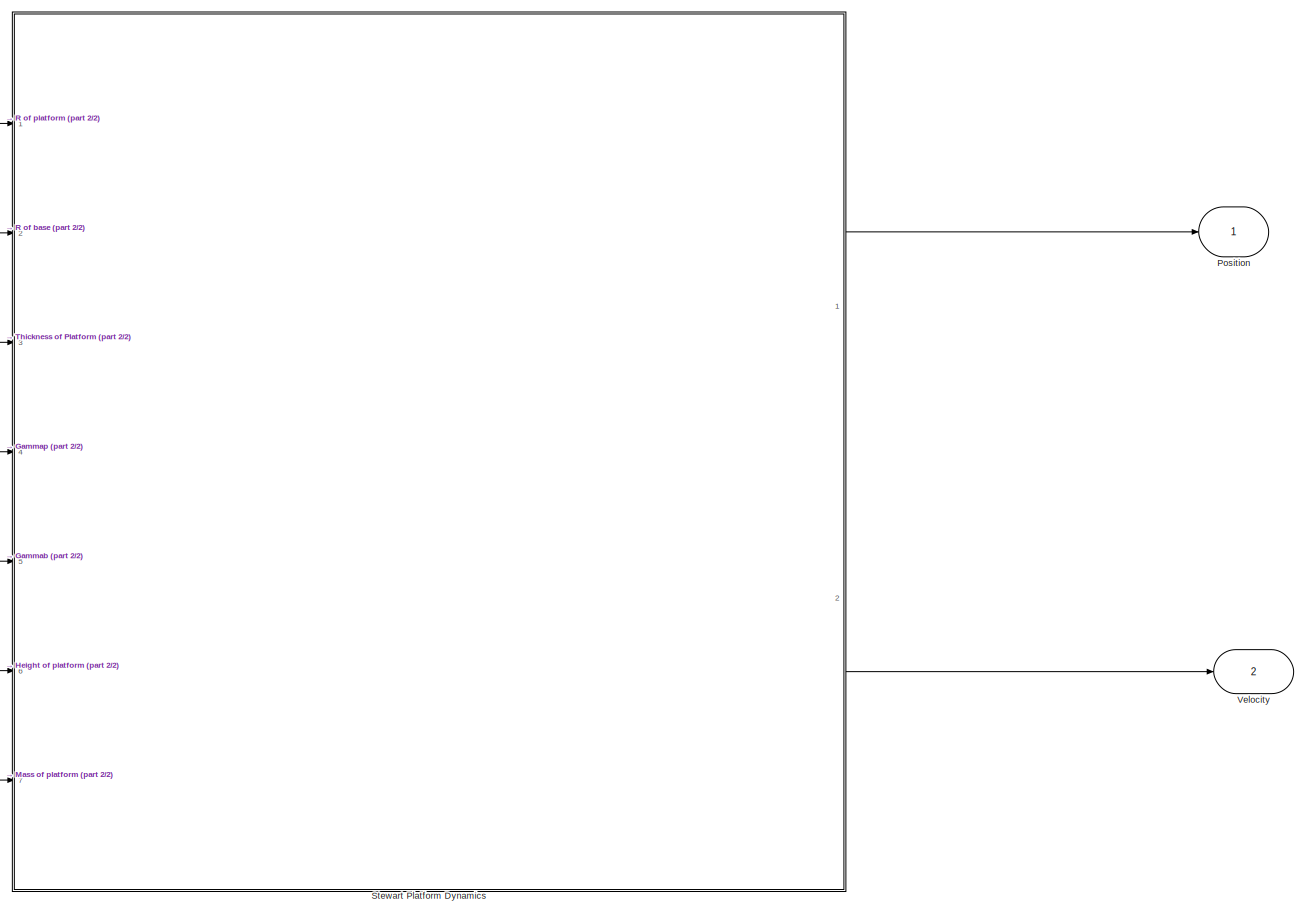
[diagram: root canvas - part 1/2, center side, full height]
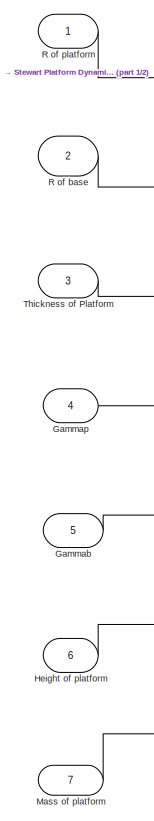
[diagram: root canvas - part 2/2, left side, full height]
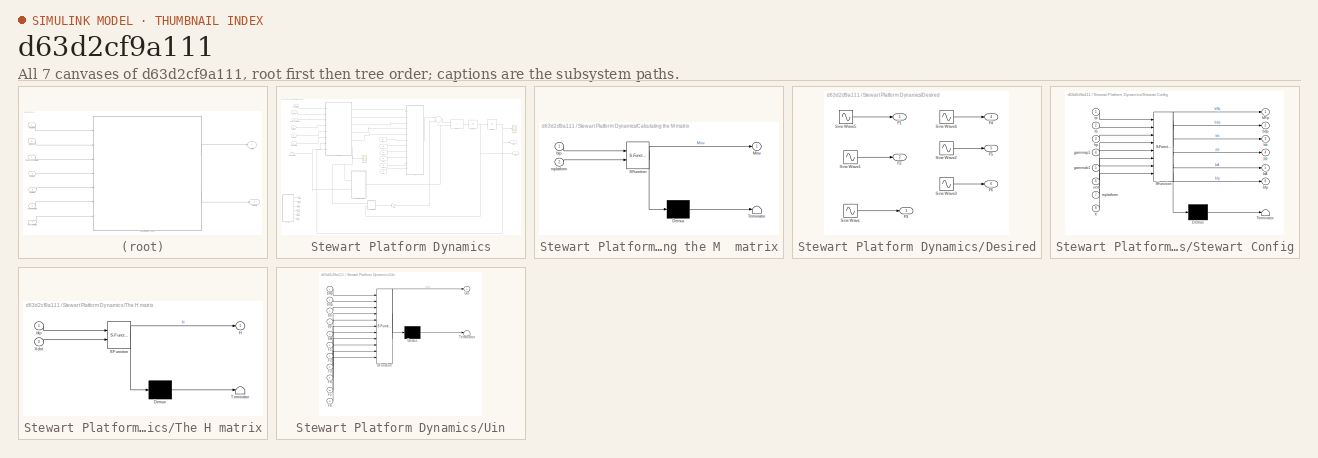
[diagram: thumbnail index - all 7 canvases of the model, root first then tree order]
MODEL slx_d63d2cf9a111
KIND model
CONFIG AbsTol = auto
CONFIG FixedStep = auto
CONFIG MaxStep = auto
CONFIG MinStep = auto
CONFIG RelTol = 1e-3
CONFIG SampleTimeConstraint = Unconstrained
CONFIG Solver = ode45
CONFIG SolverMode = Auto
CONFIG SolverName = ode45
CONFIG StartTime = 0.0
CONFIG StopTime = 10.0
BLOCK [Inport] Gammab
  IconDisplay = Port number
  Port = 5
BLOCK [Inport] Gammap
  IconDisplay = Port number
  Port = 4
BLOCK [Inport] Height of platform 
  IconDisplay = Port number
  Port = 6
BLOCK [Inport] Mass of platform
  IconDisplay = Port number
  Port = 7
BLOCK [Outport] Position
  IconDisplay = Port number
BLOCK [Inport] R of base
  IconDisplay = Port number
  Port = 2
BLOCK [Inport] R of platform
  IconDisplay = Port number
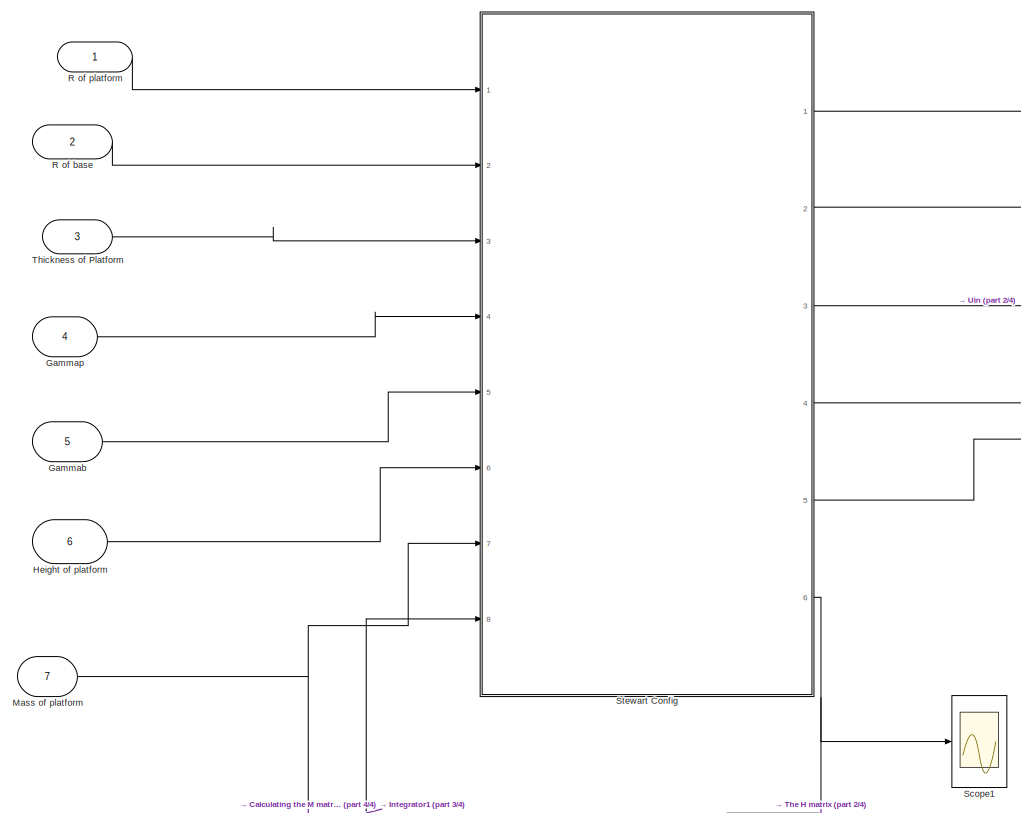
[diagram: Stewart Platform Dynamics - part 1/4, top left region]
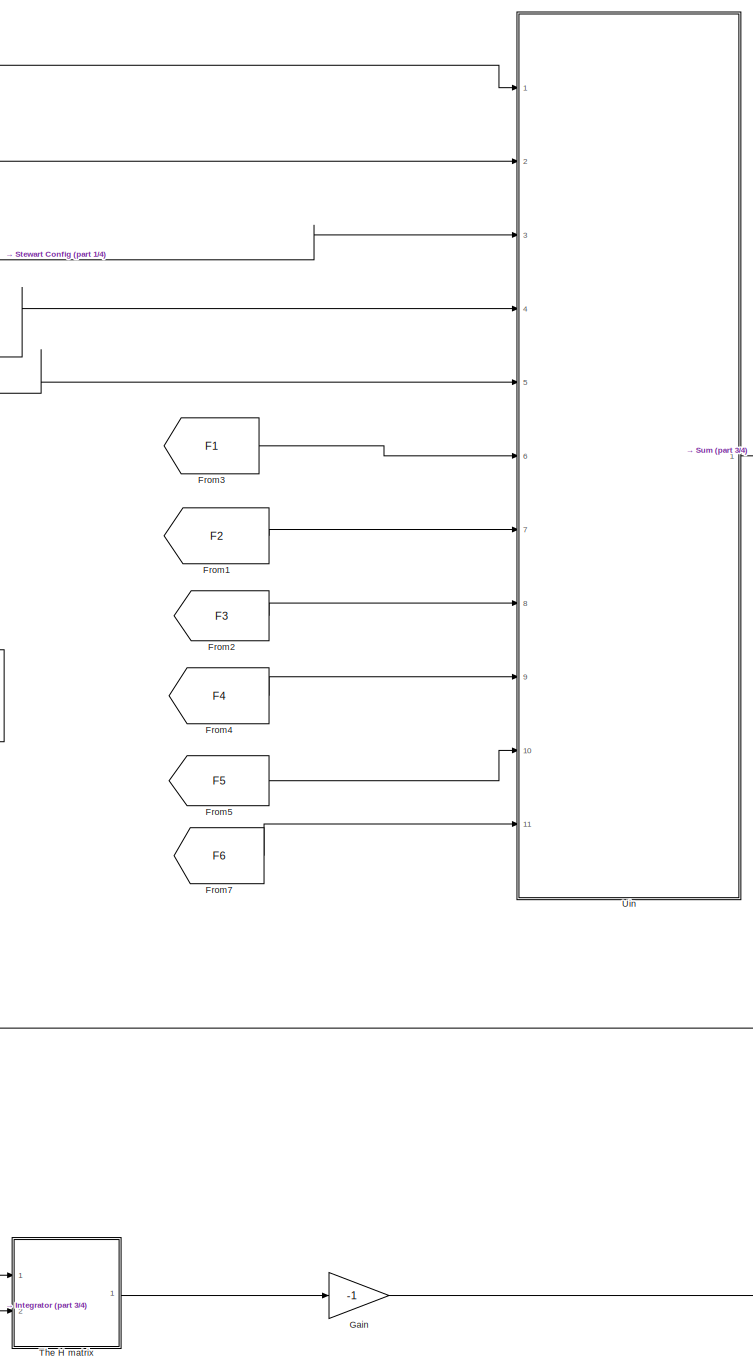
[diagram: Stewart Platform Dynamics - part 2/4, center side, full height]
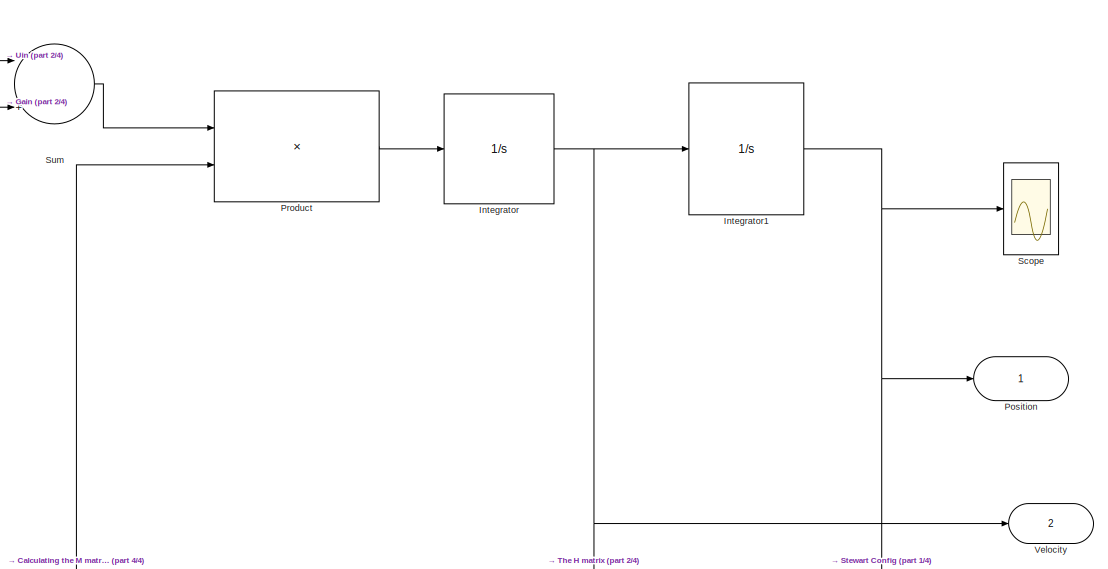
[diagram: Stewart Platform Dynamics - part 3/4, top right region]
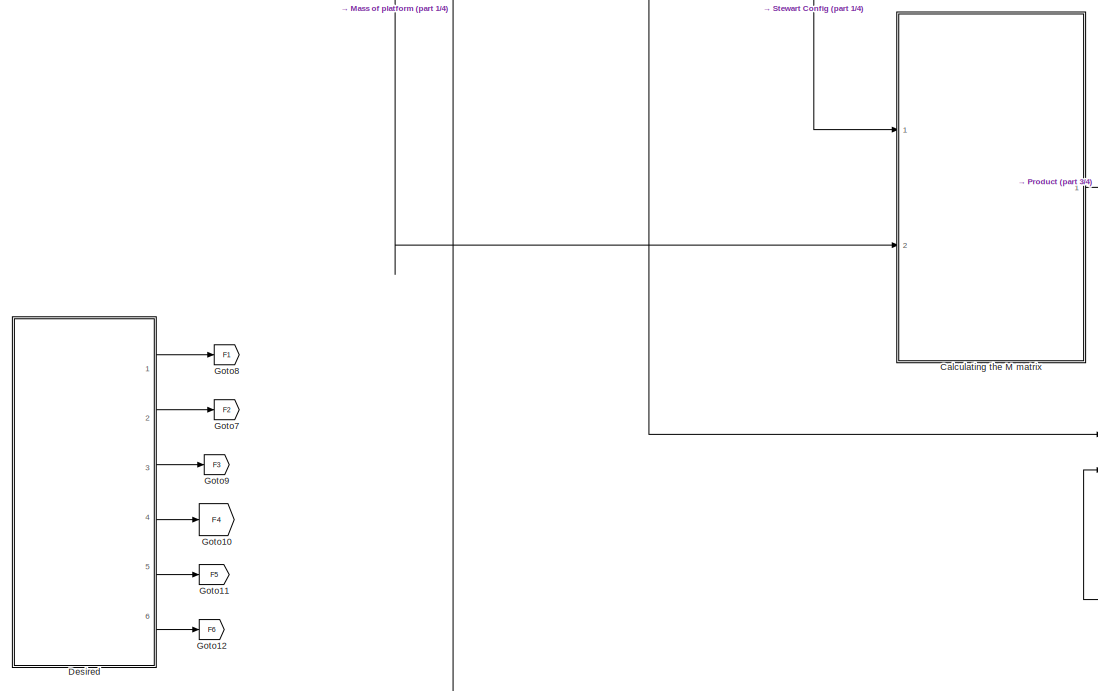
[diagram: Stewart Platform Dynamics - part 4/4, bottom left region]
BLOCK [SubSystem] Stewart Platform Dynamics
  Ports = [7, 2]
  RequestExecContextInheritance = off
BLOCK [SubSystem] Stewart Platform Dynamics/Calculating the M  matrix
  ErrorFcn = Stateflow.Translate.translate
  PermitHierarchicalResolution = ExplicitOnly
  Ports = [2, 1]
  RequestExecContextInheritance = off
  SFBlockType = MATLAB Function
  TreatAsAtomicUnit = on
BLOCK [Demux] Stewart Platform Dynamics/Calculating the M  matrix/ Demux 
  Outputs = 1
  Ports = [1, 1]
BLOCK [S-Function] Stewart Platform Dynamics/Calculating the M  matrix/ SFunction 
  EnableBusSupport = on
  FunctionName = sf_sfun
  PortCounts = [2 2]
  Ports = [2, 2]
  Tag = Stateflow S-Function SPDynamicsWithDefinedInput 4
BLOCK [Terminator] Stewart Platform Dynamics/Calculating the M  matrix/ Terminator 
BLOCK [Outport] Stewart Platform Dynamics/Calculating the M  matrix/Minv
  IconDisplay = Port number
BLOCK [Inport] Stewart Platform Dynamics/Calculating the M  matrix/bIp
  IconDisplay = Port number
BLOCK [Inport] Stewart Platform Dynamics/Calculating the M  matrix/mplatform
  IconDisplay = Port number
  Port = 2
BLOCK [SubSystem] Stewart Platform Dynamics/Desired
  Ports = [0, 6]
  RequestExecContextInheritance = off
BLOCK [Outport] Stewart Platform Dynamics/Desired/F1
  IconDisplay = Port number
BLOCK [Outport] Stewart Platform Dynamics/Desired/F2
  IconDisplay = Port number
  Port = 2
BLOCK [Outport] Stewart Platform Dynamics/Desired/F3
  IconDisplay = Port number
  Port = 3
BLOCK [Outport] Stewart Platform Dynamics/Desired/F4
  IconDisplay = Port number
  Port = 4
BLOCK [Outport] Stewart Platform Dynamics/Desired/F5
  IconDisplay = Port number
  Port = 5
BLOCK [Outport] Stewart Platform Dynamics/Desired/F6
  IconDisplay = Port number
  Port = 6
BLOCK [Sin] Stewart Platform Dynamics/Desired/Sine Wave
  Amplitude = 0.29
  Frequency = 0.6283
  Ports = [0, 1]
  SampleTime = 0
BLOCK [Sin] Stewart Platform Dynamics/Desired/Sine Wave1
  Amplitude = 0.3
  Frequency = 0.628
  Phase = 1.57
  Ports = [0, 1]
  SampleTime = 0
BLOCK [Sin] Stewart Platform Dynamics/Desired/Sine Wave2
  Amplitude = 0.305
  Frequency = 0.6283
  Ports = [0, 1]
  SampleTime = 0
BLOCK [Sin] Stewart Platform Dynamics/Desired/Sine Wave3
  Amplitude = 0.28
  Frequency = 0.6283
  Phase = 1.57
  Ports = [0, 1]
  SampleTime = 0
BLOCK [Sin] Stewart Platform Dynamics/Desired/Sine Wave4
  Amplitude = 0.31
  Frequency = 0.6283
  Phase = 1.57
  Ports = [0, 1]
  SampleTime = 0
BLOCK [Sin] Stewart Platform Dynamics/Desired/Sine Wave5
  Amplitude = 0.3
  Frequency = 0.628
  Ports = [0, 1]
  SampleTime = 0
BLOCK [From] Stewart Platform Dynamics/From1
  CloseFcn = tagdialog Close
  GotoTag = F2
BLOCK [From] Stewart Platform Dynamics/From2
  CloseFcn = tagdialog Close
  GotoTag = F3
BLOCK [From] Stewart Platform Dynamics/From3
  CloseFcn = tagdialog Close
  GotoTag = F1
BLOCK [From] Stewart Platform Dynamics/From4
  CloseFcn = tagdialog Close
  GotoTag = F4
BLOCK [From] Stewart Platform Dynamics/From5
  CloseFcn = tagdialog Close
  GotoTag = F5
BLOCK [From] Stewart Platform Dynamics/From7
  CloseFcn = tagdialog Close
  GotoTag = F6
BLOCK [Gain] Stewart Platform Dynamics/Gain
  Gain = -1
  OutDataTypeStr = Inherit: Inherit via internal rule
  ParamDataTypeStr = Inherit: Inherit via internal rule
  SaturateOnIntegerOverflow = off
BLOCK [Inport] Stewart Platform Dynamics/Gammab
  IconDisplay = Port number
  Port = 5
BLOCK [Inport] Stewart Platform Dynamics/Gammap
  IconDisplay = Port number
  Port = 4
BLOCK [Goto] Stewart Platform Dynamics/Goto10
  GotoTag = F4
BLOCK [Goto] Stewart Platform Dynamics/Goto11
  GotoTag = F5
BLOCK [Goto] Stewart Platform Dynamics/Goto12
  GotoTag = F6
BLOCK [Goto] Stewart Platform Dynamics/Goto7
  GotoTag = F2
BLOCK [Goto] Stewart Platform Dynamics/Goto8
  GotoTag = F1
BLOCK [Goto] Stewart Platform Dynamics/Goto9
  GotoTag = F3
BLOCK [Inport] Stewart Platform Dynamics/Height of platform 
  IconDisplay = Port number
  Port = 6
BLOCK [Integrator] Stewart Platform Dynamics/Integrator
  Ports = [1, 1]
BLOCK [Integrator] Stewart Platform Dynamics/Integrator1
  Ports = [1, 1]
BLOCK [Inport] Stewart Platform Dynamics/Mass of platform
  IconDisplay = Port number
  Port = 7
BLOCK [Outport] Stewart Platform Dynamics/Position
  IconDisplay = Port number
BLOCK [Product] Stewart Platform Dynamics/Product
  InputSameDT = off
  Multiplication = Matrix(*)
  OutDataTypeStr = Inherit: Inherit via internal rule
  Ports = [2, 1]
  RndMeth = Floor
  SaturateOnIntegerOverflow = off
BLOCK [Inport] Stewart Platform Dynamics/R of base
  IconDisplay = Port number
  Port = 2
BLOCK [Inport] Stewart Platform Dynamics/R of platform
  IconDisplay = Port number
BLOCK [Scope] Stewart Platform Dynamics/Scope
  Floating = off
  NumInputPorts = 1
  Ports = [1]
BLOCK [Scope] Stewart Platform Dynamics/Scope1
  Floating = off
  NumInputPorts = 1
  Ports = [1]
  SaveName = ScopeData1
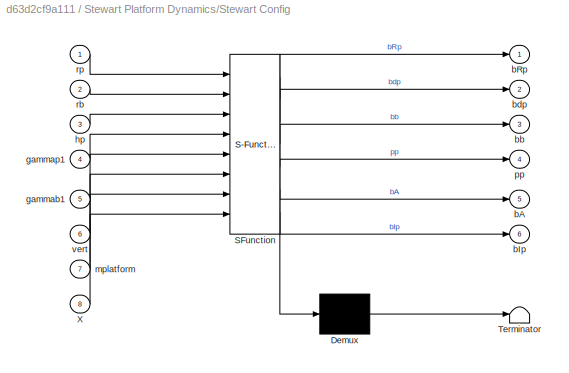
BLOCK [SubSystem] Stewart Platform Dynamics/Stewart Config
  ErrorFcn = Stateflow.Translate.translate
  PermitHierarchicalResolution = ExplicitOnly
  Ports = [8, 6]
  RequestExecContextInheritance = off
  SFBlockType = MATLAB Function
  TreatAsAtomicUnit = on
BLOCK [Demux] Stewart Platform Dynamics/Stewart Config/ Demux 
  Outputs = 1
  Ports = [1, 1]
BLOCK [S-Function] Stewart Platform Dynamics/Stewart Config/ SFunction 
  EnableBusSupport = on
  FunctionName = sf_sfun
  PortCounts = [8 7]
  Ports = [8, 7]
  Tag = Stateflow S-Function SPDynamicsWithDefinedInput 1
BLOCK [Terminator] Stewart Platform Dynamics/Stewart Config/ Terminator 
BLOCK [Inport] Stewart Platform Dynamics/Stewart Config/X
  IconDisplay = Port number
  Port = 8
BLOCK [Outport] Stewart Platform Dynamics/Stewart Config/bA
  IconDisplay = Port number
  Port = 5
BLOCK [Outport] Stewart Platform Dynamics/Stewart Config/bIp
  IconDisplay = Port number
  Port = 6
BLOCK [Outport] Stewart Platform Dynamics/Stewart Config/bRp
  IconDisplay = Port number
BLOCK [Outport] Stewart Platform Dynamics/Stewart Config/bb
  IconDisplay = Port number
  Port = 3
BLOCK [Outport] Stewart Platform Dynamics/Stewart Config/bdp
  IconDisplay = Port number
  Port = 2
BLOCK [Inport] Stewart Platform Dynamics/Stewart Config/gammab1
  IconDisplay = Port number
  Port = 5
BLOCK [Inport] Stewart Platform Dynamics/Stewart Config/gammap1
  IconDisplay = Port number
  Port = 4
BLOCK [Inport] Stewart Platform Dynamics/Stewart Config/hp
  IconDisplay = Port number
  Port = 3
BLOCK [Inport] Stewart Platform Dynamics/Stewart Config/mplatform
  IconDisplay = Port number
  Port = 7
BLOCK [Outport] Stewart Platform Dynamics/Stewart Config/pp
  IconDisplay = Port number
  Port = 4
BLOCK [Inport] Stewart Platform Dynamics/Stewart Config/rb
  IconDisplay = Port number
  Port = 2
BLOCK [Inport] Stewart Platform Dynamics/Stewart Config/rp
  IconDisplay = Port number
BLOCK [Inport] Stewart Platform Dynamics/Stewart Config/vert
  IconDisplay = Port number
  Port = 6
BLOCK [Sum] Stewart Platform Dynamics/Sum
  InputSameDT = off
  Inputs = |++
  OutDataTypeStr = Inherit: Inherit via internal rule
  Ports = [2, 1]
  SaturateOnIntegerOverflow = off
BLOCK [SubSystem] Stewart Platform Dynamics/The H matrix
  ErrorFcn = Stateflow.Translate.translate
  PermitHierarchicalResolution = ExplicitOnly
  Ports = [2, 1]
  RequestExecContextInheritance = off
  SFBlockType = MATLAB Function
  TreatAsAtomicUnit = on
BLOCK [Demux] Stewart Platform Dynamics/The H matrix/ Demux 
  Outputs = 1
  Ports = [1, 1]
BLOCK [S-Function] Stewart Platform Dynamics/The H matrix/ SFunction 
  EnableBusSupport = on
  FunctionName = sf_sfun
  PortCounts = [2 2]
  Ports = [2, 2]
  Tag = Stateflow S-Function SPDynamicsWithDefinedInput 5
BLOCK [Terminator] Stewart Platform Dynamics/The H matrix/ Terminator 
BLOCK [Outport] Stewart Platform Dynamics/The H matrix/H
  IconDisplay = Port number
BLOCK [Inport] Stewart Platform Dynamics/The H matrix/Xdot
  IconDisplay = Port number
  Port = 2
BLOCK [Inport] Stewart Platform Dynamics/The H matrix/bIp
  IconDisplay = Port number
BLOCK [Inport] Stewart Platform Dynamics/Thickness of Platform
  IconDisplay = Port number
  Port = 3
BLOCK [SubSystem] Stewart Platform Dynamics/Uin
  ErrorFcn = Stateflow.Translate.translate
  PermitHierarchicalResolution = ExplicitOnly
  Ports = [11, 1]
  RequestExecContextInheritance = off
  SFBlockType = MATLAB Function
  TreatAsAtomicUnit = on
BLOCK [Demux] Stewart Platform Dynamics/Uin/ Demux 
  Outputs = 1
  Ports = [1, 1]
BLOCK [S-Function] Stewart Platform Dynamics/Uin/ SFunction 
  EnableBusSupport = on
  FunctionName = sf_sfun
  PortCounts = [11 2]
  Ports = [11, 2]
  Tag = Stateflow S-Function SPDynamicsWithDefinedInput 3
BLOCK [Terminator] Stewart Platform Dynamics/Uin/ Terminator 
BLOCK [Inport] Stewart Platform Dynamics/Uin/F1
  IconDisplay = Port number
  Port = 6
BLOCK [Inport] Stewart Platform Dynamics/Uin/F2
  IconDisplay = Port number
  Port = 7
BLOCK [Inport] Stewart Platform Dynamics/Uin/F3
  IconDisplay = Port number
  Port = 8
BLOCK [Inport] Stewart Platform Dynamics/Uin/F4
  IconDisplay = Port number
  Port = 9
BLOCK [Inport] Stewart Platform Dynamics/Uin/F5
  IconDisplay = Port number
  Port = 10
BLOCK [Inport] Stewart Platform Dynamics/Uin/F6
  IconDisplay = Port number
  Port = 11
BLOCK [Outport] Stewart Platform Dynamics/Uin/Uin
  IconDisplay = Port number
BLOCK [Inport] Stewart Platform Dynamics/Uin/bA
  IconDisplay = Port number
  Port = 5
BLOCK [Inport] Stewart Platform Dynamics/Uin/bRp
  IconDisplay = Port number
BLOCK [Inport] Stewart Platform Dynamics/Uin/bb
  IconDisplay = Port number
  Port = 3
BLOCK [Inport] Stewart Platform Dynamics/Uin/bdp
  IconDisplay = Port number
  Port = 2
BLOCK [Inport] Stewart Platform Dynamics/Uin/pp
  IconDisplay = Port number
  Port = 4
BLOCK [Outport] Stewart Platform Dynamics/Velocity
  IconDisplay = Port number
  Port = 2
BLOCK [Inport] Thickness of Platform
  IconDisplay = Port number
  Port = 3
BLOCK [Outport] Velocity
  IconDisplay = Port number
  Port = 2
LINE Gammab:1 -> Stewart Platform Dynamics:5
LINE Gammap:1 -> Stewart Platform Dynamics:4
LINE Height of platform :1 -> Stewart Platform Dynamics:6
LINE Mass of platform:1 -> Stewart Platform Dynamics:7
LINE R of base:1 -> Stewart Platform Dynamics:2
LINE R of platform:1 -> Stewart Platform Dynamics:1
LINE Stewart Platform Dynamics/Calculating the M  matrix:1 -> Stewart Platform Dynamics/Product:2
LINE Stewart Platform Dynamics/Desired/Sine Wave1:1 -> Stewart Platform Dynamics/Desired/F2:1
LINE Stewart Platform Dynamics/Desired/Sine Wave2:1 -> Stewart Platform Dynamics/Desired/F5:1
LINE Stewart Platform Dynamics/Desired/Sine Wave3:1 -> Stewart Platform Dynamics/Desired/F6:1
LINE Stewart Platform Dynamics/Desired/Sine Wave4:1 -> Stewart Platform Dynamics/Desired/F4:1
LINE Stewart Platform Dynamics/Desired/Sine Wave5:1 -> Stewart Platform Dynamics/Desired/F1:1
LINE Stewart Platform Dynamics/Desired/Sine Wave:1 -> Stewart Platform Dynamics/Desired/F3:1
LINE Stewart Platform Dynamics/Desired:1 -> Stewart Platform Dynamics/Goto8:1
LINE Stewart Platform Dynamics/Desired:2 -> Stewart Platform Dynamics/Goto7:1
LINE Stewart Platform Dynamics/Desired:3 -> Stewart Platform Dynamics/Goto9:1
LINE Stewart Platform Dynamics/Desired:4 -> Stewart Platform Dynamics/Goto10:1
LINE Stewart Platform Dynamics/Desired:5 -> Stewart Platform Dynamics/Goto11:1
LINE Stewart Platform Dynamics/Desired:6 -> Stewart Platform Dynamics/Goto12:1
LINE Stewart Platform Dynamics/From1:1 -> Stewart Platform Dynamics/Uin:7
LINE Stewart Platform Dynamics/From2:1 -> Stewart Platform Dynamics/Uin:8
LINE Stewart Platform Dynamics/From3:1 -> Stewart Platform Dynamics/Uin:6
LINE Stewart Platform Dynamics/From4:1 -> Stewart Platform Dynamics/Uin:9
LINE Stewart Platform Dynamics/From5:1 -> Stewart Platform Dynamics/Uin:10
LINE Stewart Platform Dynamics/From7:1 -> Stewart Platform Dynamics/Uin:11
LINE Stewart Platform Dynamics/Gain:1 -> Stewart Platform Dynamics/Sum:2
LINE Stewart Platform Dynamics/Gammab:1 -> Stewart Platform Dynamics/Stewart Config:5
LINE Stewart Platform Dynamics/Gammap:1 -> Stewart Platform Dynamics/Stewart Config:4
LINE Stewart Platform Dynamics/Height of platform :1 -> Stewart Platform Dynamics/Stewart Config:6
NET Stewart Platform Dynamics/Integrator1:1 -> Stewart Platform Dynamics/Position:1, Stewart Platform Dynamics/Scope:1, Stewart Platform Dynamics/Stewart Config:8
NET Stewart Platform Dynamics/Integrator:1 -> Stewart Platform Dynamics/Integrator1:1, Stewart Platform Dynamics/The H matrix:2, Stewart Platform Dynamics/Velocity:1
NET Stewart Platform Dynamics/Mass of platform:1 -> Stewart Platform Dynamics/Calculating the M  matrix:2, Stewart Platform Dynamics/Stewart Config:7
LINE Stewart Platform Dynamics/Product:1 -> Stewart Platform Dynamics/Integrator:1
LINE Stewart Platform Dynamics/R of base:1 -> Stewart Platform Dynamics/Stewart Config:2
LINE Stewart Platform Dynamics/R of platform:1 -> Stewart Platform Dynamics/Stewart Config:1
LINE Stewart Platform Dynamics/Stewart Config:1 -> Stewart Platform Dynamics/Uin:1
LINE Stewart Platform Dynamics/Stewart Config:2 -> Stewart Platform Dynamics/Uin:2
LINE Stewart Platform Dynamics/Stewart Config:3 -> Stewart Platform Dynamics/Uin:3
LINE Stewart Platform Dynamics/Stewart Config:4 -> Stewart Platform Dynamics/Uin:4
LINE Stewart Platform Dynamics/Stewart Config:5 -> Stewart Platform Dynamics/Uin:5
NET Stewart Platform Dynamics/Stewart Config:6 -> Stewart Platform Dynamics/Calculating the M  matrix:1, Stewart Platform Dynamics/Scope1:1, Stewart Platform Dynamics/The H matrix:1
LINE Stewart Platform Dynamics/Sum:1 -> Stewart Platform Dynamics/Product:1
LINE Stewart Platform Dynamics/The H matrix:1 -> Stewart Platform Dynamics/Gain:1
LINE Stewart Platform Dynamics/Thickness of Platform:1 -> Stewart Platform Dynamics/Stewart Config:3
LINE Stewart Platform Dynamics/Uin:1 -> Stewart Platform Dynamics/Sum:1
LINE Stewart Platform Dynamics:1 -> Position:1
LINE Stewart Platform Dynamics:2 -> Velocity:1
LINE Thickness of Platform:1 -> Stewart Platform Dynamics:3
note: NET lines group one-source signal fan-out (src -> all destinations, sorted); 1:1 wires keep LINE
CHART Stewart Platform Dynamics/Stewart Config states=1 transitions=1
  STATE_LABEL 'eML_blk_kernel()'
  STATE_LABEL 'SCRIPT:\nfunction [bRp,bdp,bb,pp,bA,bIp] = fcn(rp,rb,hp,gammap1,gammab1,vert,mplatform,X)\n%#codegen\n%The states that were chosen were X=[x,y,z,phi,theta,psi] and\n%X2=[xdot,ydot,zdot,p,q,r ]\n%Due to this a  trnasformation matrix must be added to transform the body\n%rates to Euler rates.\ngammap = [gammap1,120-gammap1, 120+gammap1, -120-gammap1,-120+gammap1,-gammap1];\ngammab = [gammab1,120-gammab1, 12...<+1618ch>'
CHART Stewart Platform Dynamics/Uin states=1 transitions=1
  STATE_LABEL 'eML_blk_kernel()'
  STATE_LABEL "SCRIPT:\nfunction Uin = fcn(bRp,bdp,bb,pp,bA,F1,F2,F3,F4,F5,F6)\n%#codegen\n    g=9.81;\n    G=[0,0,-g]';\n    Fvec=zeros(3,6);\n    %We are going to add g in vector form to the input force\n   \n    %for j=1:6\n     %  Fvec(:,j)=F(j,a)*bA(:,j);\n    %end\n    Fvec(:,1)=F1*bA(:,1);\n    Fvec(:,2)=F2*bA(:,2);\n    Fvec(:,3)=F3*bA(:,3);\n    Fvec(:,4)=F4*bA(:,4);\n    Fvec(:,5)=F5*bA(:,5);\n    Fvec(:,6)=F6*bA(:,6)...<+669ch>"
CHART Stewart Platform Dynamics/Calculating the M  matrix states=1 transitions=1
  STATE_LABEL 'eML_blk_kernel()'
  STATE_LABEL 'SCRIPT:\nfunction Minv = fcn(bIp,mplatform)\n%#codegen\nMinv=zeros(6,6);\nm=mplatform*(eye(3));\n\nz=zeros(3,3);\n\nM=[m,z;z,bIp];\nMinv=inv(M);\n'
CHART Stewart Platform Dynamics/The H matrix states=1 transitions=1
  STATE_LABEL 'eML_blk_kernel()'
  STATE_LABEL 'SCRIPT:\nfunction H = fcn(bIp,Xdot)\n%#codegen\n\nbWp = [Xdot(4,1) ; Xdot(5,1) ; Xdot(6,1)] ;\n\nbWpskew=[ 0 , -1*bWp(3,1) , bWp(2,1) ; \n         bWp(3,1) , 0 , -1*bWp(1,1)  ;\n         -1*bWp(2,1), bWp(1,1), 0 ];\n     \n     h= bWpskew*bIp;                             %WxI \n    H=[z,z;z,h];\n\n\n'
